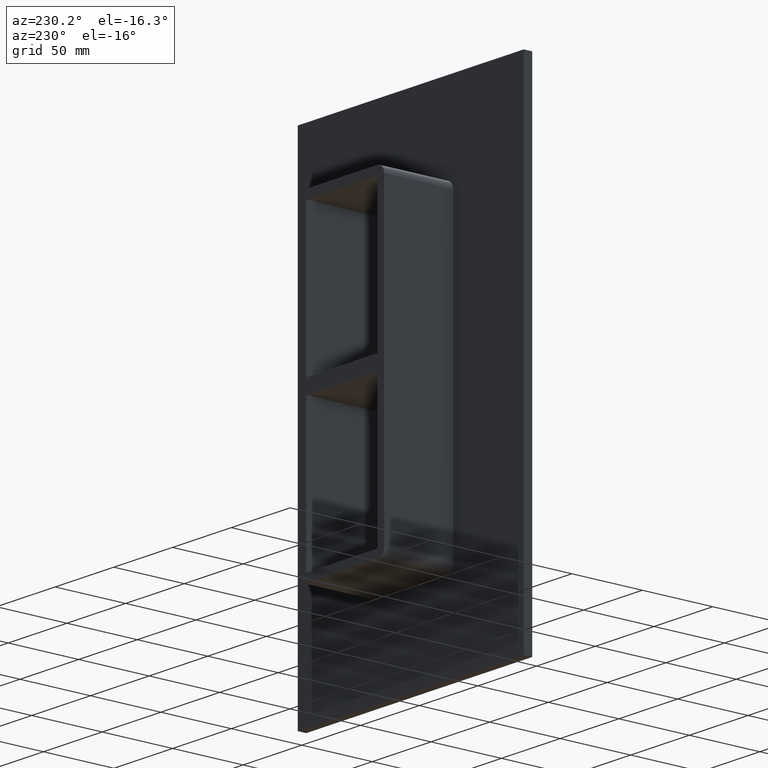
[diagram: clean part render]
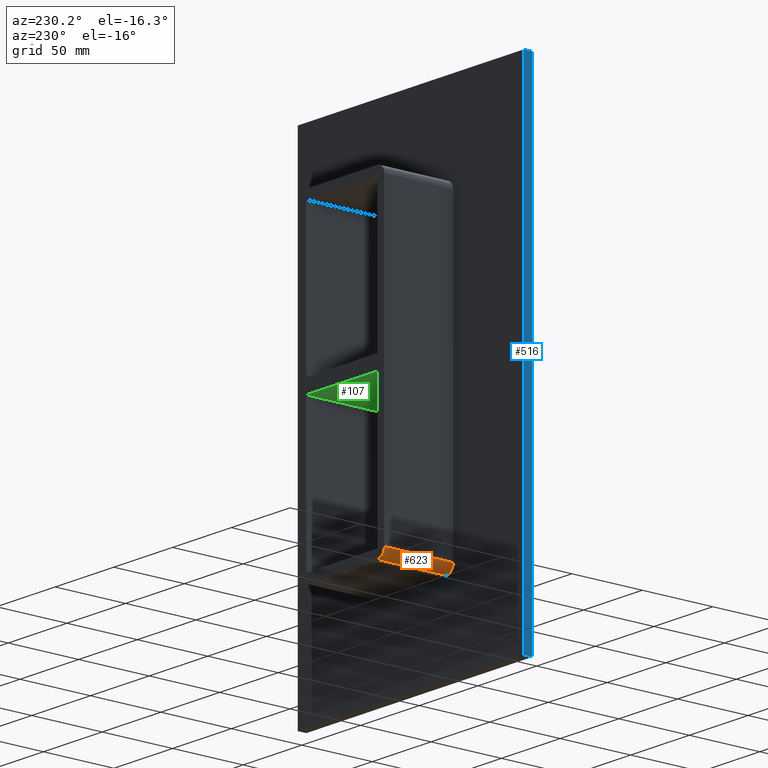
[diagram: same view with three faces highlighted in distinct colors, each labeled with its STEP entity id]
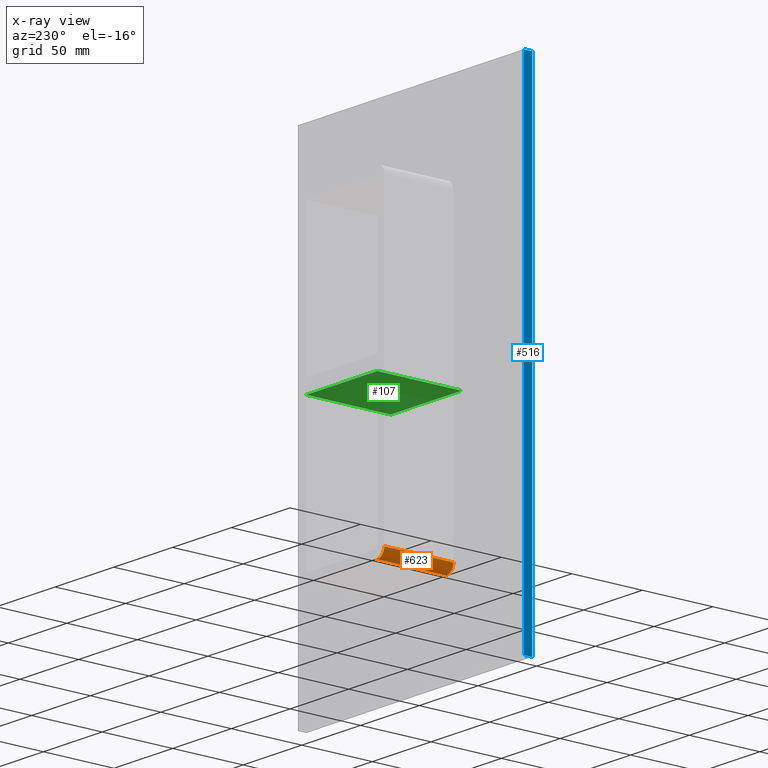
[diagram: x-ray of the same camera — body ghosted, the three highlighted faces saturated]
A machine part, auxiliary view with three faces highlighted in distinct colors.
The next image is the same camera in x-ray (body ghosted, the three faces saturated) — at least one of them is partly hidden behind the body in this view.
Their STEP definitions:

[orange] entity #623 — the highlighted cylindrical surface (edge-blend (fillet) strip) has radius 6 mm, axis along (0, 1, 0).
#308=CARTESIAN_POINT('',(-36.25,6.000000000000001,-105.99999999999997));
#309=VERTEX_POINT('',#308);
#316=CARTESIAN_POINT('',(-30.249999999999986,6.000000000000001,-112.0));
#317=VERTEX_POINT('',#316);
#318=CARTESIAN_POINT('',(-30.249999999999986,6.000000000000001,-105.99999999999997));
#319=DIRECTION('',(0.0,1.0,0.0));
#320=DIRECTION('',(0.0,0.0,-1.0));
#321=AXIS2_PLACEMENT_3D('',#318,#319,#320);
#322=CIRCLE('',#321,6.000000000000014);
#323=EDGE_CURVE('',#317,#309,#322,.T.);
#592=CARTESIAN_POINT('',(-30.249999999999986,0.0,-105.99999999999997));
#593=DIRECTION('',(0.0,1.0,0.0));
#594=DIRECTION('',(0.0,0.0,-1.0));
#595=AXIS2_PLACEMENT_3D('',#592,#593,#594);
#596=CYLINDRICAL_SURFACE('',#595,6.000000000000014);
#597=ORIENTED_EDGE('',*,*,#323,.T.);
#598=CARTESIAN_POINT('',(-36.25,55.0,-105.99999999999997));
#599=VERTEX_POINT('',#598);
#600=CARTESIAN_POINT('',(-36.25,6.000000000000001,-105.99999999999997));
#601=DIRECTION('',(0.0,1.0,0.0));
#602=VECTOR('',#601,49.0);
#603=LINE('',#600,#602);
#604=EDGE_CURVE('',#309,#599,#603,.T.);
#605=ORIENTED_EDGE('',*,*,#604,.T.);
#606=CARTESIAN_POINT('',(-30.249999999999986,55.0,-112.0));
#607=VERTEX_POINT('',#606);
#608=CARTESIAN_POINT('',(-30.249999999999986,55.0,-105.99999999999997));
#609=DIRECTION('',(0.0,1.0,0.0));
#610=DIRECTION('',(0.0,0.0,-1.0));
#611=AXIS2_PLACEMENT_3D('',#608,#609,#610);
#612=CIRCLE('',#611,6.000000000000014);
#613=EDGE_CURVE('',#607,#599,#612,.T.);
#614=ORIENTED_EDGE('',*,*,#613,.F.);
#615=CARTESIAN_POINT('',(-30.249999999999986,6.000000000000001,-112.0));
#616=DIRECTION('',(0.0,1.0,0.0));
#617=VECTOR('',#616,49.0);
#618=LINE('',#615,#617);
#619=EDGE_CURVE('',#317,#607,#618,.T.);
#620=ORIENTED_EDGE('',*,*,#619,.F.);
#621=EDGE_LOOP('',(#597,#605,#614,#620));
#622=FACE_OUTER_BOUND('',#621,.T.);
#623=ADVANCED_FACE('',(#622),#596,.T.);

[blue] entity #516 — the highlighted planar face has unit normal (-1, 0, 0).
#248=CARTESIAN_POINT('',(-96.25,6.000000000000001,-172.0));
#249=VERTEX_POINT('',#248);
#256=CARTESIAN_POINT('',(-96.25,6.000000000000001,172.00000000000006));
#257=VERTEX_POINT('',#256);
#258=CARTESIAN_POINT('',(-96.25,6.000000000000001,-172.0));
#259=DIRECTION('',(0.0,0.0,1.0));
#260=VECTOR('',#259,344.00000000000006);
#261=LINE('',#258,#260);
#262=EDGE_CURVE('',#249,#257,#261,.T.);
#358=CARTESIAN_POINT('',(-96.25,0.0,-172.0));
#359=VERTEX_POINT('',#358);
#374=CARTESIAN_POINT('',(-96.25,0.0,172.00000000000003));
#375=VERTEX_POINT('',#374);
#382=CARTESIAN_POINT('',(-96.25,0.0,-172.0));
#383=DIRECTION('',(0.0,0.0,1.0));
#384=VECTOR('',#383,344.00000000000006);
#385=LINE('',#382,#384);
#386=EDGE_CURVE('',#359,#375,#385,.T.);
#491=CARTESIAN_POINT('',(-96.25,0.0,172.00000000000003));
#492=DIRECTION('',(0.0,1.0,0.0));
#493=VECTOR('',#492,6.000000000000001);
#494=LINE('',#491,#493);
#495=EDGE_CURVE('',#375,#257,#494,.T.);
#500=CARTESIAN_POINT('',(-96.25,0.0,-172.0));
#501=DIRECTION('',(-1.0,0.0,0.0));
#502=DIRECTION('',(0.0,0.0,1.0));
#503=AXIS2_PLACEMENT_3D('',#500,#501,#502);
#504=PLANE('',#503);
#505=ORIENTED_EDGE('',*,*,#386,.T.);
#506=ORIENTED_EDGE('',*,*,#495,.T.);
#507=ORIENTED_EDGE('',*,*,#262,.F.);
#508=CARTESIAN_POINT('',(-96.25,0.0,-172.0));
#509=DIRECTION('',(0.0,1.0,0.0));
#510=VECTOR('',#509,6.000000000000001);
#511=LINE('',#508,#510);
#512=EDGE_CURVE('',#359,#249,#511,.T.);
#513=ORIENTED_EDGE('',*,*,#512,.F.);
#514=EDGE_LOOP('',(#505,#506,#507,#513));
#515=FACE_OUTER_BOUND('',#514,.T.);
#516=ADVANCED_FACE('',(#515),#504,.T.);

[green] entity #107 — the highlighted planar face has unit normal (0, 0, -1).
#68=CARTESIAN_POINT('',(30.250000000000004,-5.0,-5.0));
#69=DIRECTION('',(0.0,0.0,-1.0));
#70=DIRECTION('',(-1.0,0.0,0.0));
#71=AXIS2_PLACEMENT_3D('',#68,#69,#70);
#72=PLANE('',#71);
#73=CARTESIAN_POINT('',(30.250000000000004,-5.0,-5.0));
#74=VERTEX_POINT('',#73);
#75=CARTESIAN_POINT('',(-30.250000000001616,-5.0,-5.0));
#76=VERTEX_POINT('',#75);
#77=CARTESIAN_POINT('',(30.250000000000004,-5.0,-5.0));
#78=DIRECTION('',(-1.0,0.0,0.0));
#79=VECTOR('',#78,60.50000000000162);
#80=LINE('',#77,#79);
#81=EDGE_CURVE('',#74,#76,#80,.T.);
#82=ORIENTED_EDGE('',*,*,#81,.T.);
#83=CARTESIAN_POINT('',(-30.250000000001616,55.0,-5.0));
#84=VERTEX_POINT('',#83);
#85=CARTESIAN_POINT('',(-30.249999999999986,55.0,-5.0));
#86=DIRECTION('',(0.0,-1.0,0.0));
#87=VECTOR('',#86,60.0);
#88=LINE('',#85,#87);
#89=EDGE_CURVE('',#84,#76,#88,.T.);
#90=ORIENTED_EDGE('',*,*,#89,.F.);
#91=CARTESIAN_POINT('',(30.250000000000004,55.0,-5.0));
#92=VERTEX_POINT('',#91);
#93=CARTESIAN_POINT('',(30.250000000000004,55.0,-5.0));
#94=DIRECTION('',(-1.0,0.0,0.0));
#95=VECTOR('',#94,60.50000000000162);
#96=LINE('',#93,#95);
#97=EDGE_CURVE('',#92,#84,#96,.T.);
#98=ORIENTED_EDGE('',*,*,#97,.F.);
#99=CARTESIAN_POINT('',(30.250000000000004,-5.0,-5.0));
#100=DIRECTION('',(0.0,1.0,0.0));
#101=VECTOR('',#100,60.0);
#102=LINE('',#99,#101);
#103=EDGE_CURVE('',#74,#92,#102,.T.);
#104=ORIENTED_EDGE('',*,*,#103,.F.);
#105=EDGE_LOOP('',(#82,#90,#98,#104));
#106=FACE_OUTER_BOUND('',#105,.T.);
#107=ADVANCED_FACE('',(#106),#72,.T.);